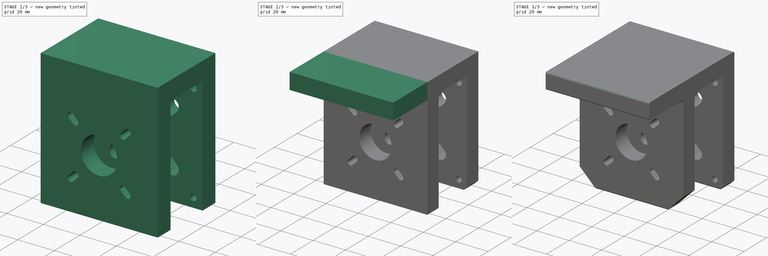
[diagram: build sequence overview — one tinted view per stage of 3, left to right]
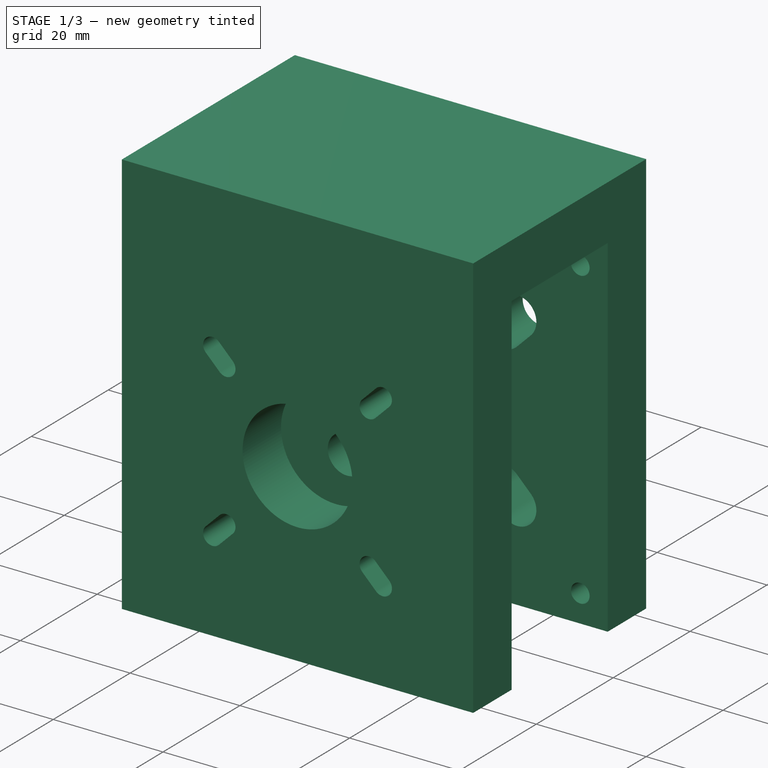
[diagram: stage 1 of 3 — iso view after this stage's code; geometry added in this stage tinted green]
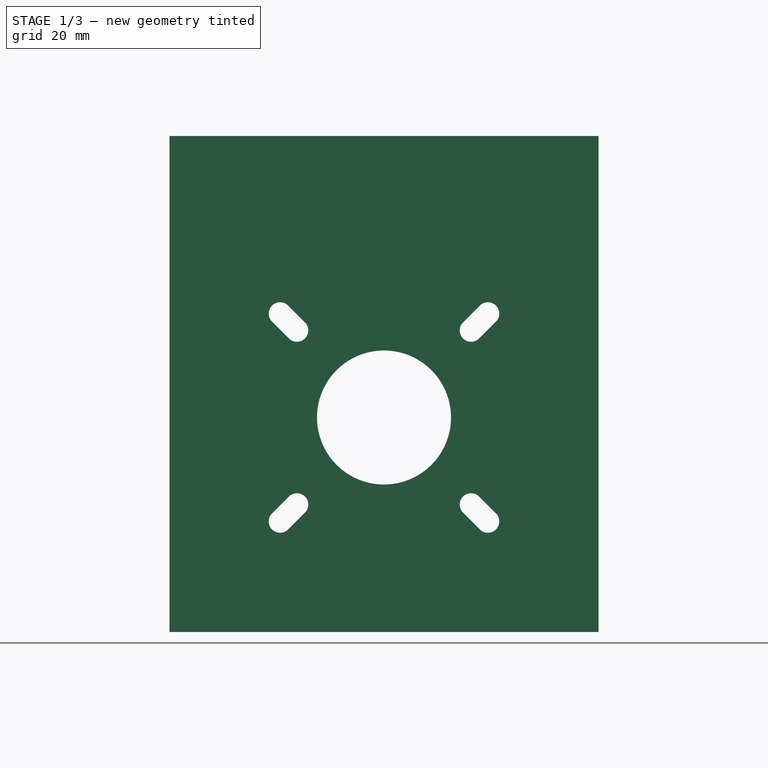
[diagram: stage 1 of 3 — front view after this stage's code; geometry added in this stage tinted green]
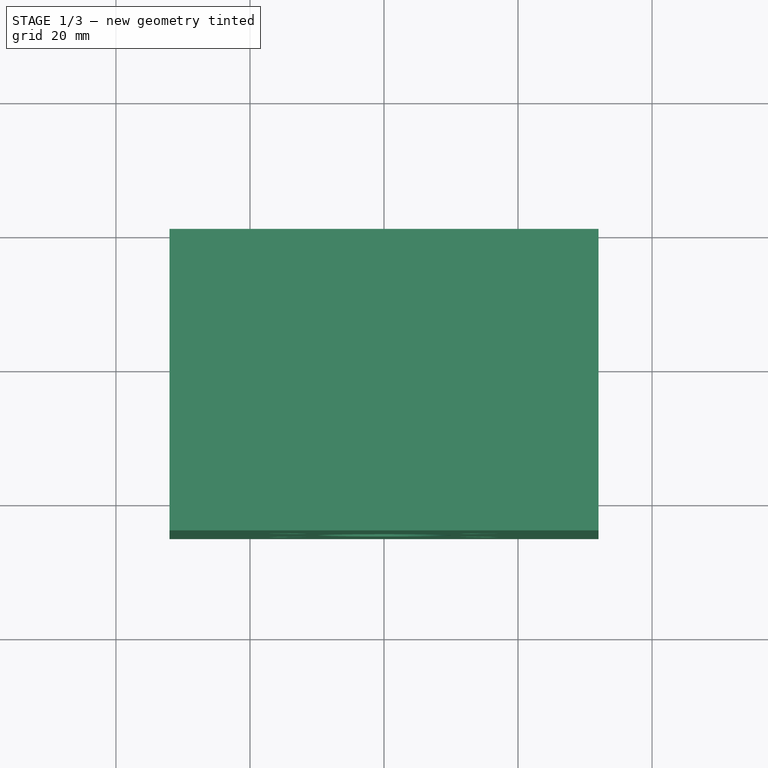
[diagram: stage 1 of 3 — top view after this stage's code; geometry added in this stage tinted green]
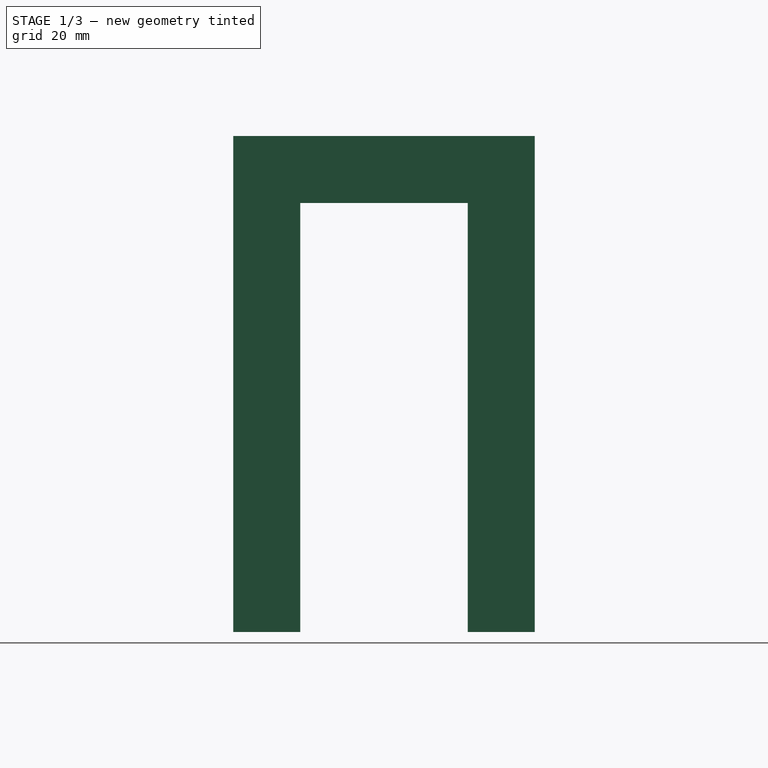
[diagram: stage 1 of 3 — right view after this stage's code; geometry added in this stage tinted green]
FCSTD DOCUMENT  (FreeCAD 0.19R23777 (Git))
Label: h3-nema
License: All rights reserved
LicenseURL: http://en.wikipedia.org/wiki/All_rights_reserved
objects: Sketcher::SketchObject×4, PartDesign::Pad×4, PartDesign::Chamfer×2, PartDesign::Fillet×2, PartDesign::Body×1
note: 21 computed .brp shape members not serialized (recipe doc carries the construction recipe); baked Part::Feature solids carry a one-line shape summary decoded from their .brp

FEATURE [Sketcher::SketchObject] Sketch
  FullyConstrained = true
  MapMode = 5
  Placement = pos=(0,0,0) rot=(1,0,0;1.5708rad)
  Support = -> [XZ_Plane]
  sketch-geometry (25):
    g0: Circle CenterX=0 CenterY=0 CenterZ=0 NormalX=0 NormalY=0 NormalZ=1 AngleXU=0 Radius=10
    g1: Circle CenterX=27 CenterY=27 CenterZ=0 NormalX=0 NormalY=0 NormalZ=1 AngleXU=0 Radius=1.7
    g2: LineSegment StartX=-32 StartY=-32 StartZ=0 EndX=32 EndY=-32 EndZ=0
    g3: LineSegment StartX=32 StartY=-32 StartZ=0 EndX=32 EndY=32 EndZ=0
    g4: LineSegment StartX=32 StartY=32 StartZ=0 EndX=-32 EndY=32 EndZ=0
    g5: LineSegment StartX=-32 StartY=32 StartZ=0 EndX=-32 EndY=-32 EndZ=0
    g6: Circle CenterX=-27 CenterY=-27 CenterZ=0 NormalX=0 NormalY=0 NormalZ=1 AngleXU=0 Radius=1.7
    g7: Circle CenterX=-27 CenterY=27 CenterZ=0 NormalX=0 NormalY=0 NormalZ=1 AngleXU=0 Radius=1.7
    g8: Circle CenterX=27 CenterY=-27 CenterZ=0 NormalX=0 NormalY=0 NormalZ=1 AngleXU=0 Radius=1.7
    g9: ArcOfCircle CenterX=13 CenterY=13 CenterZ=0 NormalX=0 NormalY=0 NormalZ=1 AngleXU=0 Radius=3.5 StartAngle=2.35619 EndAngle=5.49779
    g10: ArcOfCircle CenterX=15.5 CenterY=15.5 CenterZ=0 NormalX=0 NormalY=0 NormalZ=1 AngleXU=0 Radius=3.5 StartAngle=5.49779 EndAngle=8.63938
    g11: LineSegment StartX=13.0251 StartY=17.9749 StartZ=0 EndX=10.5251 EndY=15.4749 EndZ=0
    g12: LineSegment StartX=17.9749 StartY=13.0251 StartZ=0 EndX=15.4749 EndY=10.5251 EndZ=0
    g13: ArcOfCircle CenterX=-15.5 CenterY=15.5 CenterZ=0 NormalX=0 NormalY=0 NormalZ=1 AngleXU=0 Radius=3.5 StartAngle=0.785398 EndAngle=3.92699
    g14: ArcOfCircle CenterX=-13 CenterY=13 CenterZ=0 NormalX=0 NormalY=0 NormalZ=1 AngleXU=0 Radius=3.5 StartAngle=3.92699 EndAngle=7.06858
    g15: LineSegment StartX=-10.5251 StartY=15.4749 StartZ=0 EndX=-13.0251 EndY=17.9749 EndZ=0
    g16: LineSegment StartX=-15.4749 StartY=10.5251 StartZ=0 EndX=-17.9749 EndY=13.0251 EndZ=0
    g17: ArcOfCircle CenterX=15.5 CenterY=-15.5 CenterZ=0 NormalX=0 NormalY=0 NormalZ=1 AngleXU=0 Radius=3.5 StartAngle=3.92699 EndAngle=7.06858
    g18: ArcOfCircle CenterX=13 CenterY=-13 CenterZ=0 NormalX=0 NormalY=0 NormalZ=1 AngleXU=0 Radius=3.5 StartAngle=0.785398 EndAngle=3.92699
    g19: LineSegment StartX=10.5251 StartY=-15.4749 StartZ=0 EndX=13.0251 EndY=-17.9749 EndZ=0
    g20: LineSegment StartX=15.4749 StartY=-10.5251 StartZ=0 EndX=17.9749 EndY=-13.0251 EndZ=0
    g21: ArcOfCircle CenterX=-15.5 CenterY=-15.5 CenterZ=0 NormalX=0 NormalY=0 NormalZ=1 AngleXU=0 Radius=3.5 StartAngle=2.35619 EndAngle=5.49779
    g22: ArcOfCircle CenterX=-13 CenterY=-13 CenterZ=0 NormalX=0 NormalY=0 NormalZ=1 AngleXU=0 Radius=3.5 StartAngle=5.49779 EndAngle=8.63938
    g23: LineSegment StartX=-15.4749 StartY=-10.5251 StartZ=0 EndX=-17.9749 EndY=-13.0251 EndZ=0
    g24: LineSegment StartX=-10.5251 StartY=-15.4749 StartZ=0 EndX=-13.0251 EndY=-17.9749 EndZ=0
  constraints (55):
    c: Coincident(g0,g-1)
    c: Radius(g0) = 10
    c: Radius(g1) = 1.7
    c: DistanceX(g0,g1) = 27
    c: DistanceY(g0,g1) = 27
    c: Coincident(g2,g3)
    c: Coincident(g3,g4)
    c: Coincident(g4,g5)
    c: Coincident(g5,g2)
    c: Horizontal(g2)
    c: Vertical(g5)
    c: Symmetric(g4,g3,g-2)
    c: Symmetric(g2,g3,g-1)
    c: DistanceY(g3,g3) = 64
    c: DistanceX(g4,g4) = 64
    c: Equal(g7,g1)
    c: Equal(g8,g1)
    c: Equal(g1,g6)
    c: Symmetric(g7,g1,g-2)
    c: Symmetric(g6,g7,g-1)
    c: Symmetric(g8,g1,g-1)
    c: Tangent(g12,g9) = 1.5708
    c: Tangent(g12,g10) = 1.5708
    c: Tangent(g11,g9) = -1.5708
    c: Tangent(g11,g10) = -1.5708
    c: DistanceX(g0,g9) = 13
    c: DistanceY(g0,g9) = 13
    c: DistanceX(g0,g10) = 15.5
    c: DistanceY(g0,g10) = 15.5
    c: Radius(g9) = 3.5
    c: Radius(g10) = 3.5
    c: Tangent(g16,g13) = 1.5708
    c: Tangent(g16,g14) = 1.5708
    c: Tangent(g15,g13) = -1.5708
    c: Tangent(g15,g14) = -1.5708
    c: Equal(g9,g13) = 3.5
    c: Equal(g10,g14) = 3.5
    c: Tangent(g20,g17) = 1.5708
    c: Tangent(g20,g18) = 1.5708
    c: Tangent(g19,g17) = -1.5708
    c: Tangent(g19,g18) = -1.5708
    c: Equal(g9,g17) = 3.5
    c: Equal(g10,g18) = 3.5
    c: Tangent(g24,g21) = 1.5708
    c: Tangent(g24,g22) = 1.5708
    c: Tangent(g23,g21) = -1.5708
    c: Tangent(g23,g22) = -1.5708
    c: Equal(g9,g21) = 3.5
    c: Equal(g10,g22) = 3.5
    c: Symmetric(g13,g10,g-2)
    c: Symmetric(g14,g9,g-2)
    c: Symmetric(g18,g9,g-1)
    c: Symmetric(g10,g17,g-1)
    c: Symmetric(g22,g14,g-1)
    c: Symmetric(g21,g13,g-1)
FEATURE [PartDesign::Pad] Pad
  Direction = (1,1,1)
  Length = 10
  Length2 = 100
  Placement = pos=(0,0,0) rot=(1,0,0;1.5708rad)
  Profile = -> Sketch
  Type = 0
FEATURE [Sketcher::SketchObject] Sketch001
  ExternalGeometry = -> [Pad]
  FullyConstrained = true
  MapMode = 5
  Placement = pos=(0,-7.1e-15,32) rot=(0,0,1;3.14159rad)
  Support = -> [Pad]
  sketch-geometry (4):
    g0: LineSegment StartX=-32 StartY=0 StartZ=0 EndX=32 EndY=0 EndZ=0
    g1: LineSegment StartX=32 StartY=0 StartZ=0 EndX=32 EndY=35 EndZ=0
    g2: LineSegment StartX=32 StartY=35 StartZ=0 EndX=-32 EndY=35 EndZ=0
    g3: LineSegment StartX=-32 StartY=35 StartZ=0 EndX=-32 EndY=0 EndZ=0
  constraints (10):
    c: Coincident(g0,g1)
    c: Coincident(g1,g2)
    c: Coincident(g2,g3)
    c: Coincident(g3,g0)
    c: Horizontal(g2)
    c: Vertical(g1)
    c: Vertical(g3)
    c: Coincident(g0,g-5)
    c: Coincident(g0,g-6)
    c: DistanceY(g1,g1) = 35
FEATURE [PartDesign::Pad] Pad001
  BaseFeature = -> Pad
  Direction = (1,1,1)
  Length = 10
  Length2 = 100
  Placement = pos=(0,0,0) rot=(1,0,0;1.5708rad)
  Profile = -> Sketch001
  Type = 0
FEATURE [Sketcher::SketchObject] Sketch002
  ExternalGeometry = -> [Pad001]
  FullyConstrained = true
  MapMode = 5
  Placement = pos=(0,-35,-7.8e-15) rot=(1,0,0;1.5708rad)
  Support = -> [Pad001]
  sketch-geometry (21):
    g0: Circle CenterX=0 CenterY=0 CenterZ=0 NormalX=0 NormalY=0 NormalZ=1 AngleXU=0 Radius=10
    g1: ArcOfCircle CenterX=13 CenterY=13 CenterZ=0 NormalX=0 NormalY=0 NormalZ=1 AngleXU=0 Radius=1.7 StartAngle=2.35619 EndAngle=5.49779
    g2: ArcOfCircle CenterX=15.5 CenterY=15.5 CenterZ=0 NormalX=0 NormalY=0 NormalZ=1 AngleXU=0 Radius=1.7 StartAngle=5.49779 EndAngle=8.63938
    g3: LineSegment StartX=14.2979 StartY=16.7021 StartZ=0 EndX=11.7979 EndY=14.2021 EndZ=0
    g4: LineSegment StartX=16.7021 StartY=14.2979 StartZ=0 EndX=14.2021 EndY=11.7979 EndZ=0
    g5: ArcOfCircle CenterX=15.5 CenterY=-15.5 CenterZ=0 NormalX=0 NormalY=0 NormalZ=1 AngleXU=0 Radius=1.7 StartAngle=3.92699 EndAngle=7.06858
    g6: ArcOfCircle CenterX=13 CenterY=-13 CenterZ=0 NormalX=0 NormalY=0 NormalZ=1 AngleXU=0 Radius=1.7 StartAngle=0.785398 EndAngle=3.92699
    g7: LineSegment StartX=11.7979 StartY=-14.2021 StartZ=0 EndX=14.2979 EndY=-16.7021 EndZ=0
    g8: LineSegment StartX=14.2021 StartY=-11.7979 StartZ=0 EndX=16.7021 EndY=-14.2979 EndZ=0
    g9: ArcOfCircle CenterX=-15.5 CenterY=15.5 CenterZ=0 NormalX=0 NormalY=0 NormalZ=1 AngleXU=0 Radius=1.7 StartAngle=0.785398 EndAngle=3.92699
    g10: ArcOfCircle CenterX=-13 CenterY=13 CenterZ=0 NormalX=0 NormalY=0 NormalZ=1 AngleXU=0 Radius=1.7 StartAngle=3.92699 EndAngle=7.06858
    g11: LineSegment StartX=-11.7979 StartY=14.2021 StartZ=0 EndX=-14.2979 EndY=16.7021 EndZ=0
    g12: LineSegment StartX=-14.2021 StartY=11.7979 StartZ=0 EndX=-16.7021 EndY=14.2979 EndZ=0
    g13: ArcOfCircle CenterX=-15.5 CenterY=-15.5 CenterZ=0 NormalX=0 NormalY=0 NormalZ=1 AngleXU=0 Radius=1.7 StartAngle=2.35619 EndAngle=5.49779
    g14: ArcOfCircle CenterX=-13 CenterY=-13 CenterZ=0 NormalX=0 NormalY=0 NormalZ=1 AngleXU=0 Radius=1.7 StartAngle=5.49779 EndAngle=8.63938
    g15: LineSegment StartX=-14.2021 StartY=-11.7979 StartZ=0 EndX=-16.7021 EndY=-14.2979 EndZ=0
    g16: LineSegment StartX=-11.7979 StartY=-14.2021 StartZ=0 EndX=-14.2979 EndY=-16.7021 EndZ=0
    g17: LineSegment StartX=32 StartY=-32 StartZ=0 EndX=-32 EndY=-32 EndZ=0
    g18: LineSegment StartX=-32 StartY=-32 StartZ=0 EndX=-32 EndY=42 EndZ=0
    g19: LineSegment StartX=-32 StartY=42 StartZ=0 EndX=32 EndY=42 EndZ=0
    g20: LineSegment StartX=32 StartY=42 StartZ=0 EndX=32 EndY=-32 EndZ=0
  constraints (44):
    c: Coincident(g0,g-1)
    c: Radius(g0) = 10
    c: Coincident(g1,g-4)
    c: Coincident(g2,g-3)
    c: Tangent(g4,g1) = 1.5708
    c: Tangent(g3,g1) = -1.5708
    c: Tangent(g3,g2) = -1.5708
    c: Tangent(g4,g2) = 1.5708
    c: Radius(g1) = 1.7
    c: Radius(g2) = 1.7
    c: Tangent(g8,g5) = 1.5708
    c: Tangent(g7,g5) = -1.5708
    c: Tangent(g7,g6) = -1.5708
    c: Tangent(g8,g6) = 1.5708
    c: Equal(g1,g5) = 1.7
    c: Equal(g2,g6) = 1.7
    c: Tangent(g12,g9) = 1.5708
    c: Tangent(g11,g9) = -1.5708
    c: Tangent(g11,g10) = -1.5708
    c: Tangent(g12,g10) = 1.5708
    c: Equal(g1,g9) = 1.7
    c: Equal(g2,g10) = 1.7
    c: Tangent(g16,g13) = 1.5708
    c: Tangent(g15,g13) = -1.5708
    c: Tangent(g15,g14) = -1.5708
    c: Tangent(g16,g14) = 1.5708
    c: Equal(g1,g13) = 1.7
    c: Equal(g2,g14) = 1.7
    c: Coincident(g14,g-7)
    c: Coincident(g13,g-8)
    c: Coincident(g6,g-9)
    c: Coincident(g5,g-10)
    c: Coincident(g10,g-5)
    c: Coincident(g9,g-6)
    c: Coincident(g17,g18)
    c: Coincident(g18,g19)
    c: Coincident(g19,g20)
    c: Coincident(g20,g17)
    c: Horizontal(g17)
    c: Horizontal(g19)
    c: Vertical(g18)
    c: Vertical(g20)
    c: Coincident(g17,g-11)
    c: Coincident(g18,g-12)
FEATURE [PartDesign::Pad] Pad002
  BaseFeature = -> Pad001
  Direction = (1,1,1)
  Length = 10
  Length2 = 100
  Placement = pos=(0,0,0) rot=(1,0,0;1.5708rad)
  Profile = -> Sketch002
  Type = 0
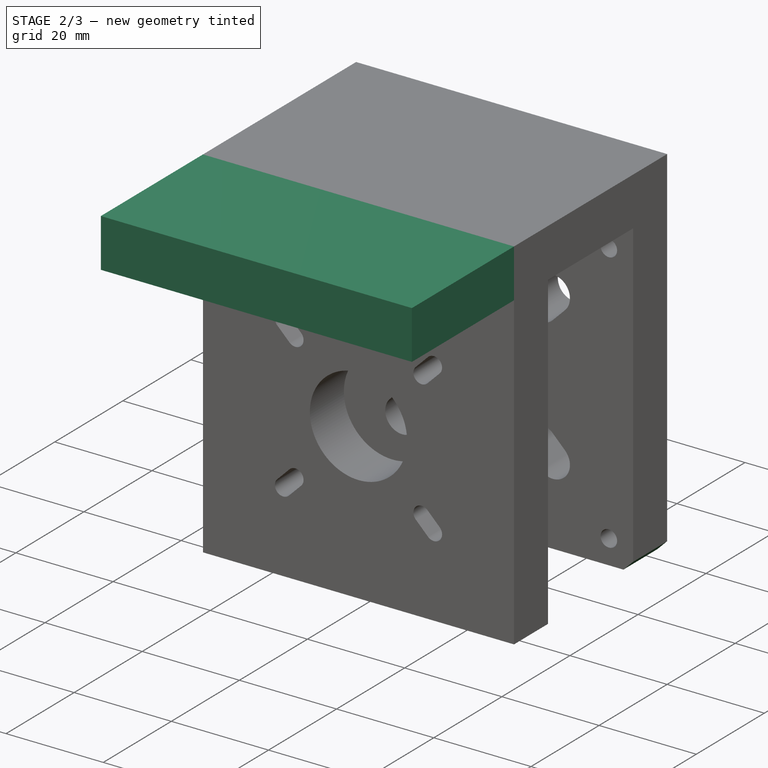
[diagram: stage 2 of 3 — iso view after this stage's code; geometry added in this stage tinted green]
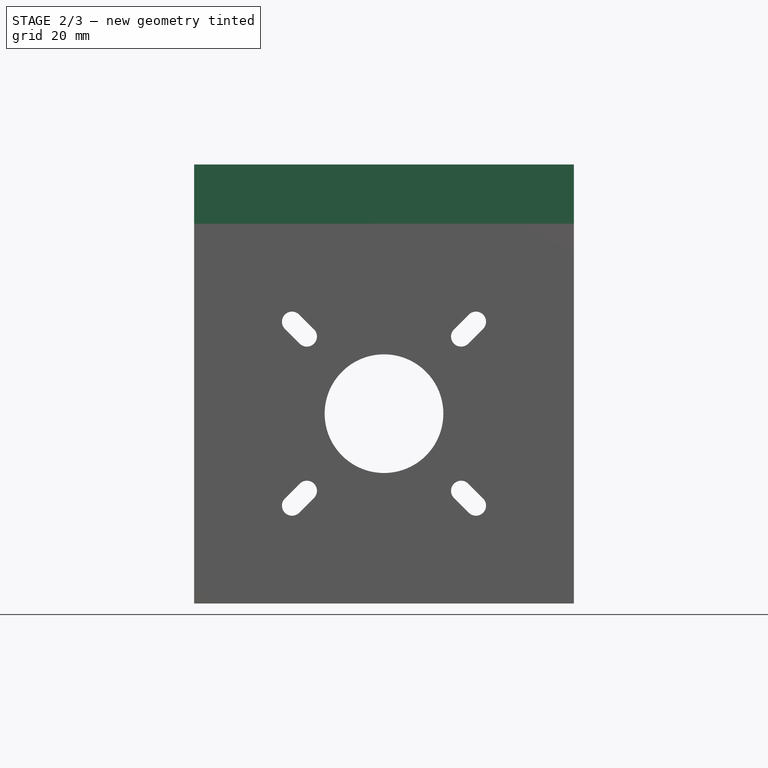
[diagram: stage 2 of 3 — front view after this stage's code; geometry added in this stage tinted green]
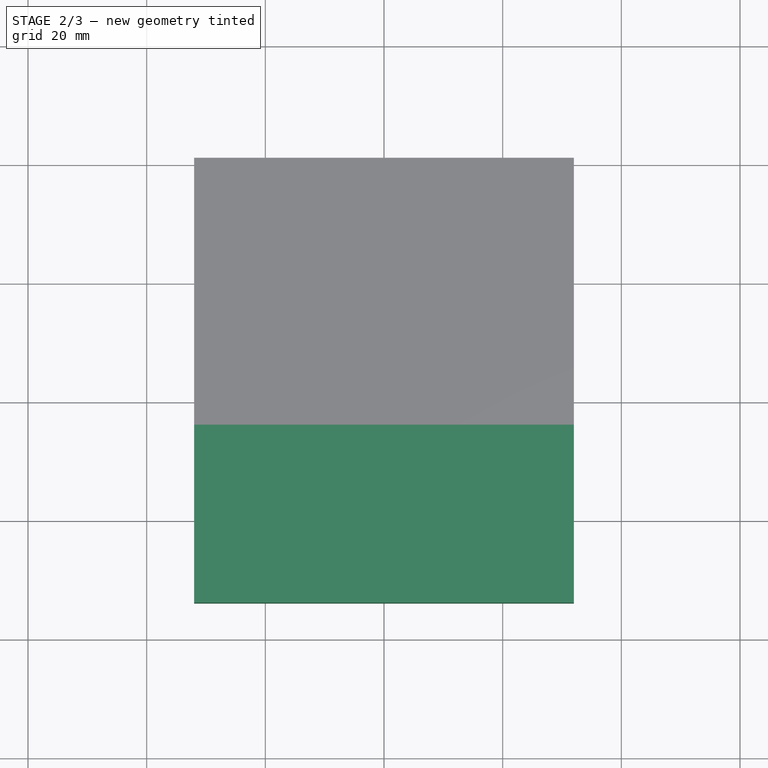
[diagram: stage 2 of 3 — top view after this stage's code; geometry added in this stage tinted green]
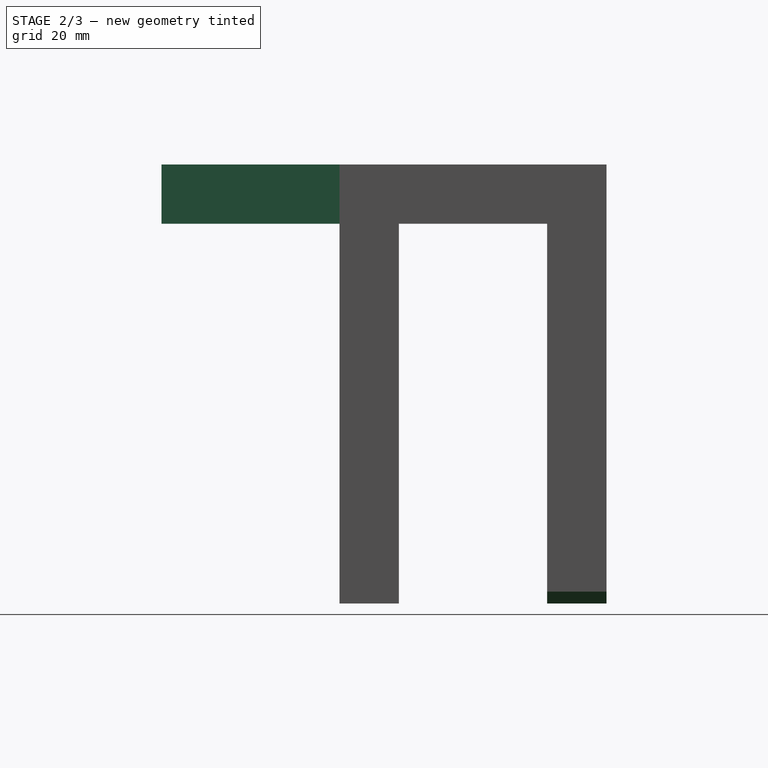
[diagram: stage 2 of 3 — right view after this stage's code; geometry added in this stage tinted green]
FEATURE [Sketcher::SketchObject] Sketch003
  FullyConstrained = false
  MapMode = 5
  Placement = pos=(0,-45,-8.6e-15) rot=(1,0,0;1.5708rad)
  Support = -> [Pad002]
  sketch-geometry (4):
    g0: LineSegment StartX=32 StartY=42 StartZ=0 EndX=-32 EndY=42 EndZ=0
    g1: LineSegment StartX=-32 StartY=42 StartZ=0 EndX=-32 EndY=32 EndZ=0
    g2: LineSegment StartX=-32 StartY=32 StartZ=0 EndX=32 EndY=32 EndZ=0
    g3: LineSegment StartX=32 StartY=32 StartZ=0 EndX=32 EndY=42 EndZ=0
  constraints (8):
    c: Coincident(g0,g1)
    c: Coincident(g1,g2)
    c: Coincident(g2,g3)
    c: Coincident(g3,g0)
    c: Horizontal(g0)
    c: Horizontal(g2)
    c: Vertical(g1)
    c: Vertical(g3)
FEATURE [PartDesign::Pad] Pad003
  BaseFeature = -> Pad002
  Direction = (1,1,1)
  Length = 30
  Length2 = 100
  Placement = pos=(0,0,0) rot=(1,0,0;1.5708rad)
  Profile = -> Sketch003
  Type = 0
FEATURE [PartDesign::Chamfer] Chamfer
  Angle = 45
  Base = -> Pad003 [Edge2,Edge1]
  BaseFeature = -> Pad003
  ChamferType = 0
  FlipDirection = false
  Placement = pos=(0,0,0) rot=(1,0,0;1.5708rad)
  Size = 2
  Size2 = 1
  SupportTransform = false
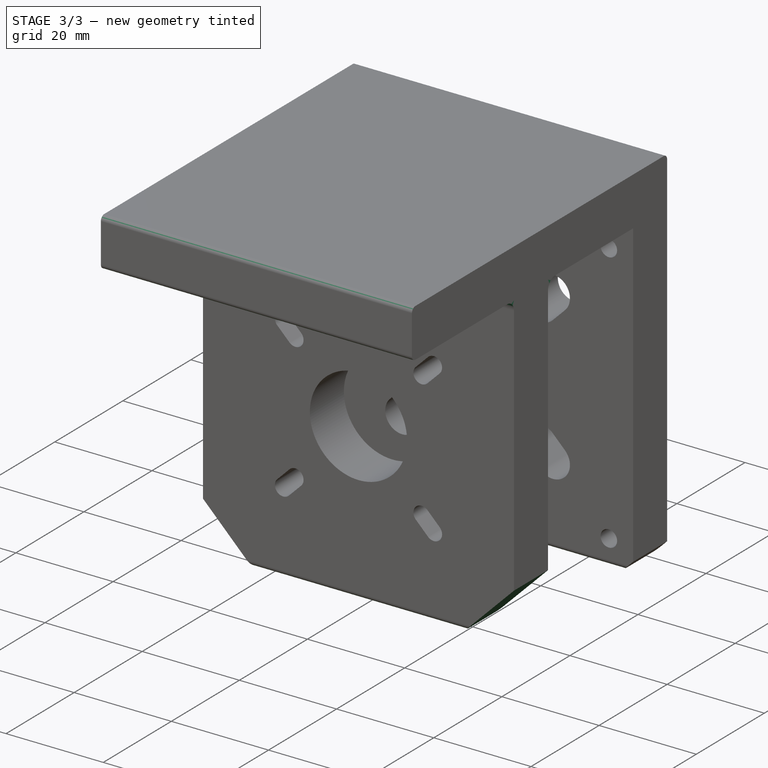
[diagram: stage 3 of 3 — iso view after this stage's code; geometry added in this stage tinted green]
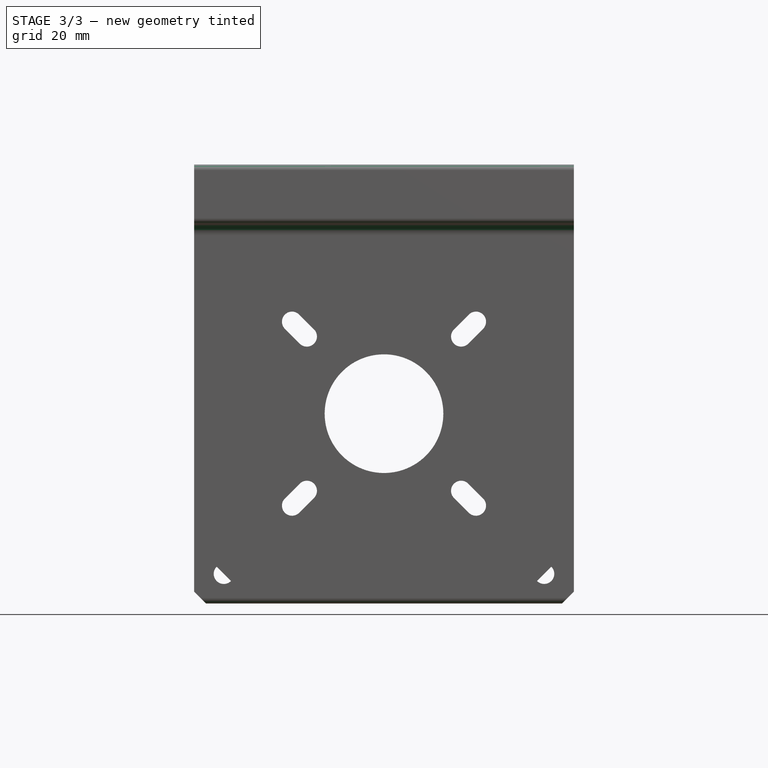
[diagram: stage 3 of 3 — front view after this stage's code; geometry added in this stage tinted green]
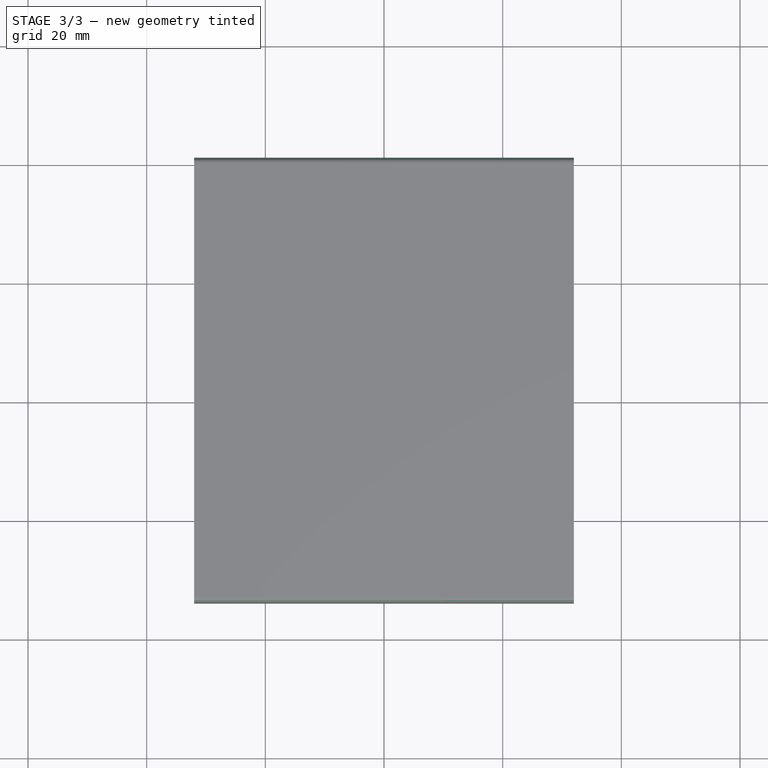
[diagram: stage 3 of 3 — top view after this stage's code; geometry added in this stage tinted green]
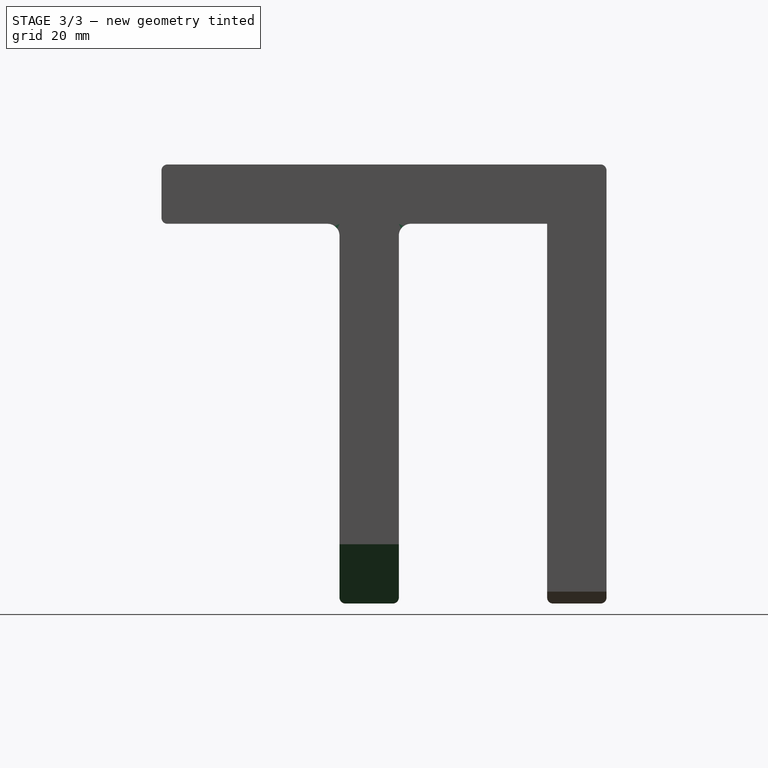
[diagram: stage 3 of 3 — right view after this stage's code; geometry added in this stage tinted green]
FEATURE [PartDesign::Chamfer] Chamfer001
  Angle = 45
  Base = -> Chamfer [Edge113,Edge118]
  BaseFeature = -> Chamfer
  ChamferType = 0
  FlipDirection = false
  Placement = pos=(0,0,0) rot=(1,0,0;1.5708rad)
  Size = 10
  Size2 = 1
  SupportTransform = false
FEATURE [PartDesign::Fillet] Fillet
  Base = -> Chamfer001 [Edge3,Edge79]
  BaseFeature = -> Chamfer001
  Placement = pos=(0,0,0) rot=(1,0,0;1.5708rad)
  Radius = 2
  SupportTransform = false
FEATURE [PartDesign::Fillet] Fillet001
  Base = -> Fillet [Edge106,Edge107,Edge104,Edge5,Edge135,Edge44,Edge111]
  BaseFeature = -> Fillet
  Placement = pos=(0,0,0) rot=(1,0,0;1.5708rad)
  Radius = 1
  SupportTransform = false
FEATURE [PartDesign::Body] Body
  Group = -> [Sketch,Pad,Sketch001,Pad001,Sketch002,Sketch003,Pad002,Pad003,Chamfer,Chamfer001,Fillet,Fillet001]
  Origin = -> Origin
  Tip = -> Fillet001
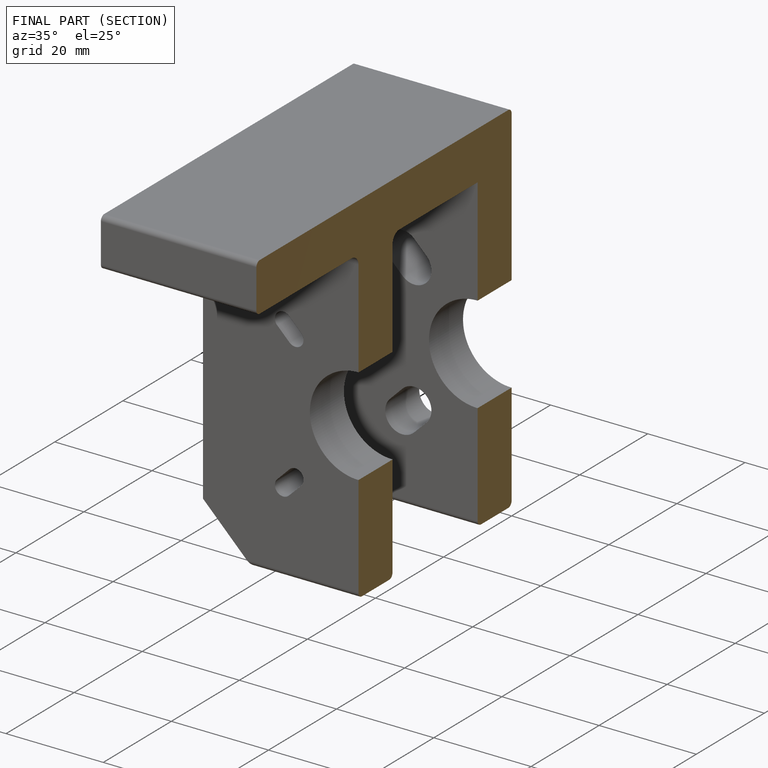
[diagram: finished part — half-section view (interior)]
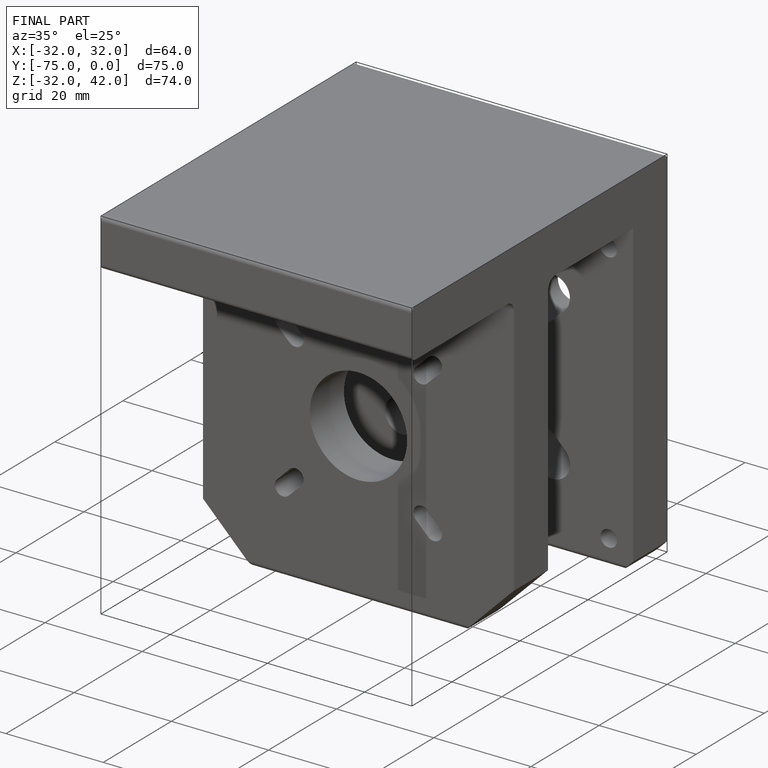
[diagram: finished part — iso view with bounding-box wireframe]
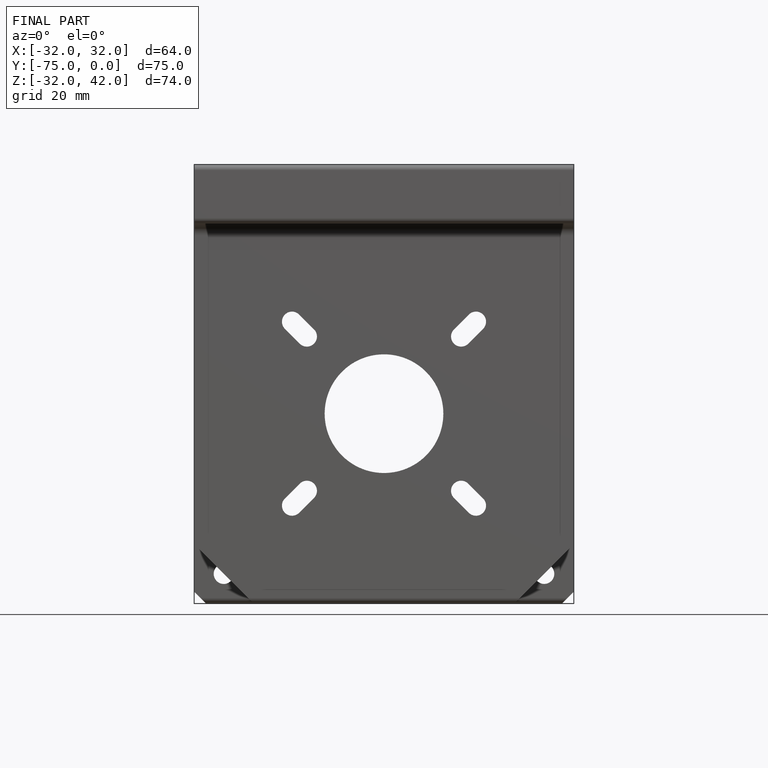
[diagram: finished part — front view with bounding-box wireframe]
